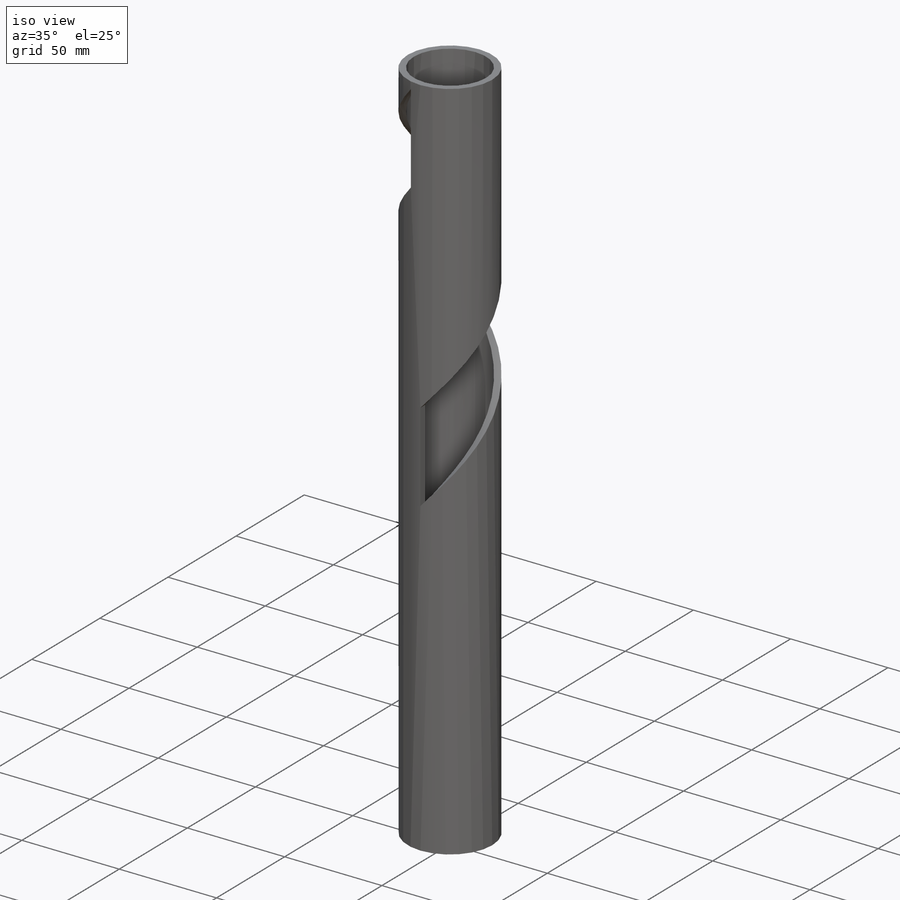
[diagram: iso view]
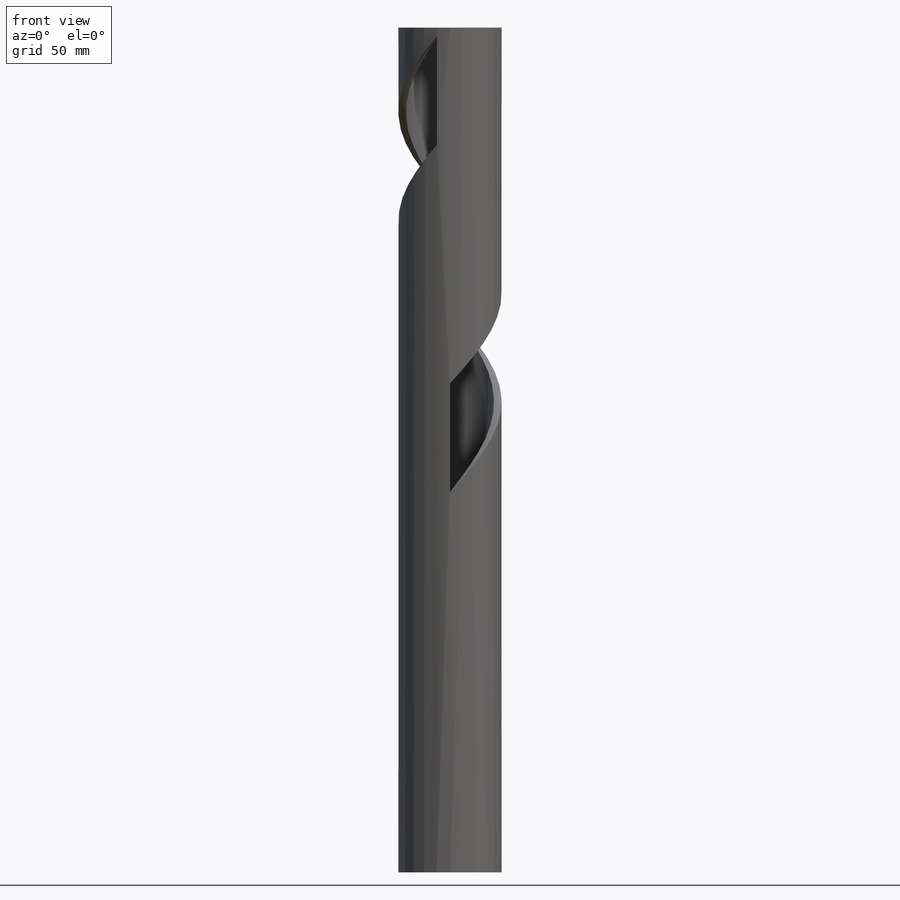
[diagram: front view]
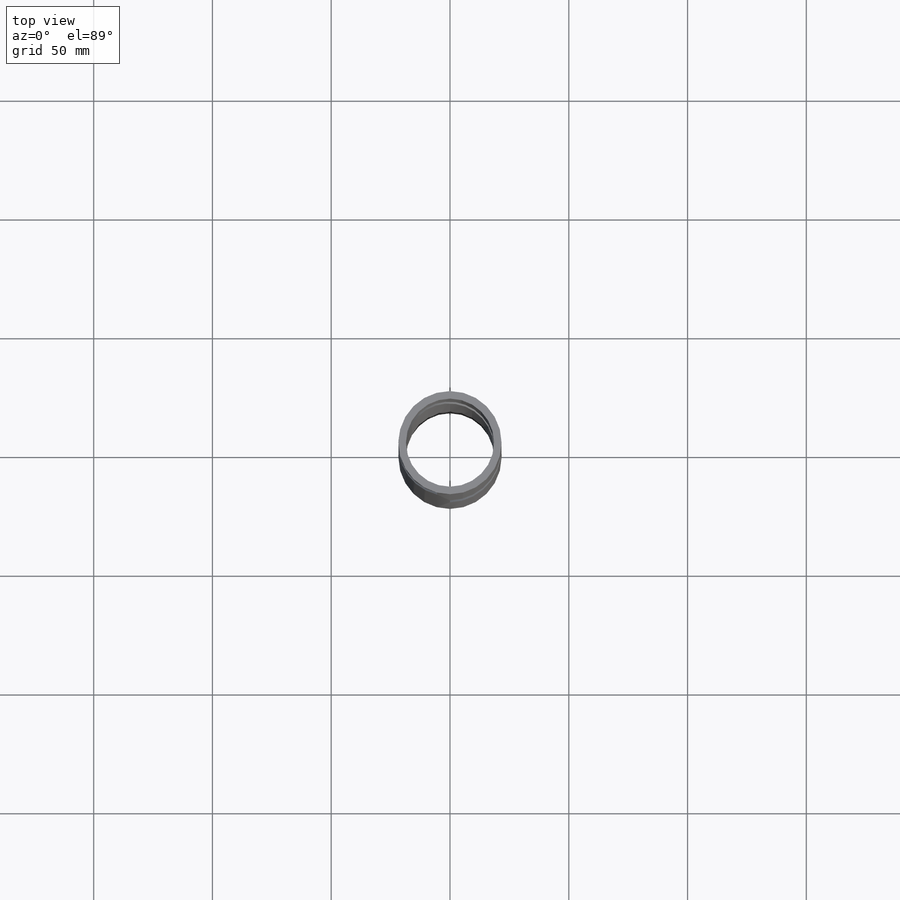
[diagram: top view]
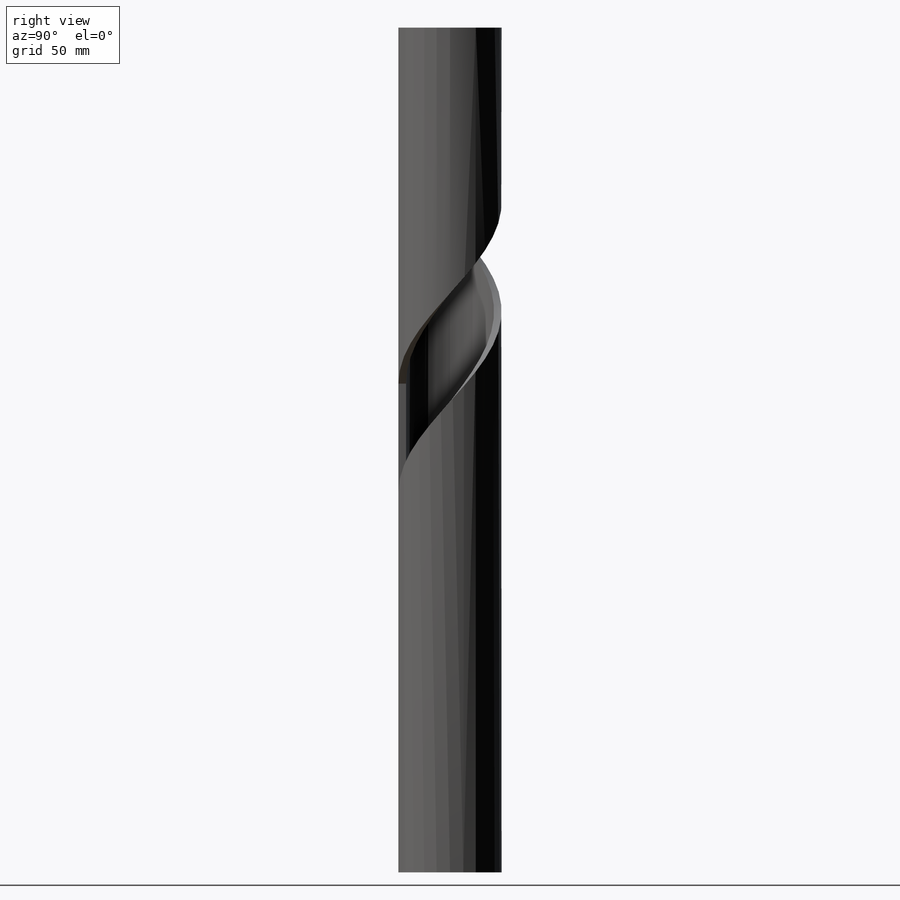
[diagram: right view]
SOLIDWORKS PART (.sldprt)
format: sldprt  version: not decoded by parser v0  size: 516,608 bytes
history: native  units: mm
features: sketch x11, cut_extrude x2, material x1, extrude x1, plane x1, helix x1, sweep x1, sheet_metal_op x1 + 1 further entry (+12 scaffold rows collapsed; 1 parser-record rows omitted)
feature tree (33):
  scaffold x12  (default folders/planes/origin — collapsed)
  material  "Copper"
  sketch  "Sketch1"  dims[D1=37.084mm D2=43.434mm]
  extrude  "Boss-Extrude1"  Depth=355.6mm
  plane  "Plane1"  Offset=182.88mm
  sketch  "Sketch5"
  helix  "Helix/Spiral1"  Pitch=146.304mm
  sketch  "Sketch6"  dims[D1=45.72mm]
  sweep  "Cut-Sweep1"
  sketch  "Sketch7"  dims[c1.D1=43.18mm c1.D2=27.94mm c1.D3=0.0254mm c2.D1=0.0254mm]
  cut_extrude  "Cut-Extrude1"  [1 undecoded]
  sketch  "Sketch16"  dims[D1=43.18mm]
  cut_extrude  "Cut-Extrude2"  Depth=0.7366mm
  sketch  "Sharp-Sketch1"  dims[c1.D1=21.59mm c1.D4=~359.932987deg c1.D5=1.0 c1.D8=0.0635mm c1.D9=0.0635mm c2.D1=0.0mm]
  sketch  "Flat-Sketch1"  dims[D1=0.7366mm D2=500.0mm D3=0.0mm]
  sketch  "Bend-Lines5"
  sketch  "Bounding-Box5"
  sheet_metal_op  "Sheet-Metal(12)"
  "Flat-Pattern(12)"
  sketch  "Bend-Lines6"
  sketch  "Bounding-Box6"
  parser-record x1  (decoder bookkeeping rows leaked as tree rows — omitted from the tree; the rows remain in map.json)
decode coverage: 9 of 17 modeling features carry decoded parameters; 1 rows unclassified (native names shown)
note: ~ marks probable driven/reference dimensions
note: 1 parameter value undecoded
note: suppression state not decoded; provenance and decode notes live in map.json
